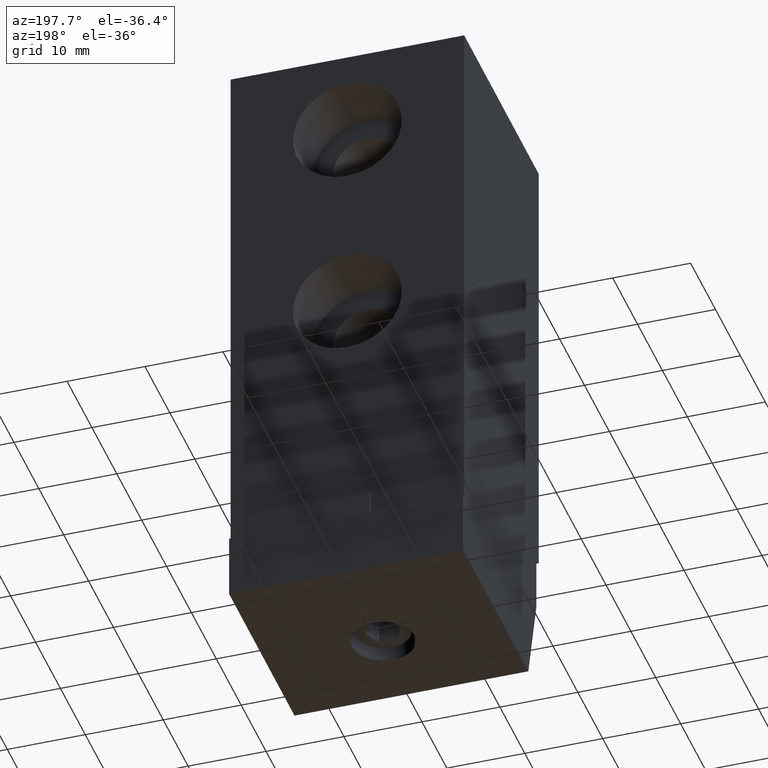
[diagram: clean part render]
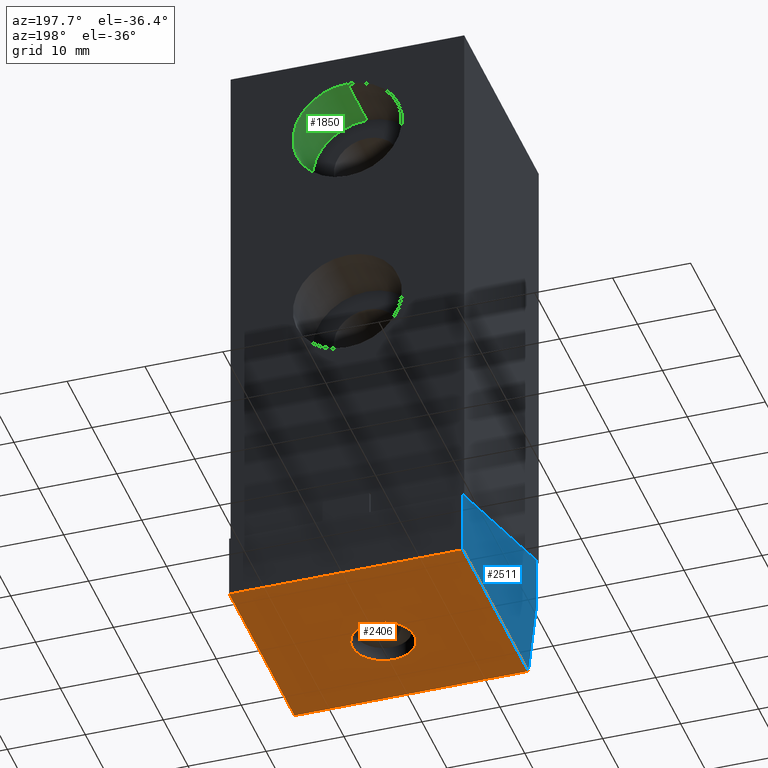
[diagram: same view with three faces highlighted in distinct colors, each labeled with its STEP entity id]
A machine part, auxiliary view with three faces highlighted in distinct colors.
Their STEP definitions:

[orange] entity #2406 — the highlighted planar face has unit normal (0, 0, -1).
#1001=CARTESIAN_POINT('',(0.E0,6.108661417323E-1,-3.09E0));
#1002=DIRECTION('',(0.E0,0.E0,1.E0));
#1003=DIRECTION('',(9.580766820097E-1,-2.865119044459E-1,0.E0));
#1004=AXIS2_PLACEMENT_3D('',#1001,#1002,#1003);
#1017=CARTESIAN_POINT('',(0.E0,6.108661417323E-1,-3.09E0));
#1018=DIRECTION('',(0.E0,0.E0,1.E0));
#1019=DIRECTION('',(-9.580766820097E-1,-2.865119044459E-1,0.E0));
#1020=AXIS2_PLACEMENT_3D('',#1017,#1018,#1019);
#1076=DIRECTION('',(1.E0,0.E0,0.E0));
#1077=VECTOR('',#1076,1.181102362205E0);
#1078=CARTESIAN_POINT('',(-5.905511811024E-1,1.665901696525E-1,-3.09E0));
#1079=LINE('',#1078,#1077);
#1083=DIRECTION('',(0.E0,1.E0,0.E0));
#1084=VECTOR('',#1083,1.034827153183E0);
#1085=CARTESIAN_POINT('',(5.905511811024E-1,1.665901696525E-1,-3.09E0));
#1086=LINE('',#1085,#1084);
#1090=DIRECTION('',(-1.E0,0.E0,0.E0));
#1091=VECTOR('',#1090,1.181102362205E0);
#1092=CARTESIAN_POINT('',(5.905511811024E-1,1.201417322835E0,-3.09E0));
#1093=LINE('',#1092,#1091);
#1097=DIRECTION('',(0.E0,-1.E0,0.E0));
#1098=VECTOR('',#1097,1.034827153182E0);
#1099=CARTESIAN_POINT('',(-5.905511811024E-1,1.201417322835E0,-3.09E0));
#1100=LINE('',#1099,#1098);
#1428=CARTESIAN_POINT('',(-5.905511811024E-1,1.665901696525E-1,-3.09E0));
#1429=CARTESIAN_POINT('',(5.905511811024E-1,1.665901696525E-1,-3.09E0));
#1430=VERTEX_POINT('',#1428);
#1431=VERTEX_POINT('',#1429);
#1432=CARTESIAN_POINT('',(5.905511811024E-1,1.201417322835E0,-3.09E0));
#1433=VERTEX_POINT('',#1432);
#1434=CARTESIAN_POINT('',(-5.905511811024E-1,1.201417322835E0,-3.09E0));
#1435=VERTEX_POINT('',#1434);
#1436=CARTESIAN_POINT('',(-1.508782176393E-1,5.657461567802E-1,-3.09E0));
#1437=CARTESIAN_POINT('',(1.508782176393E-1,5.657461567802E-1,-3.09E0));
#1438=VERTEX_POINT('',#1436);
#1439=VERTEX_POINT('',#1437);
#2387=CARTESIAN_POINT('',(-5.905511811024E-1,4.E-2,-3.09E0));
#2388=DIRECTION('',(0.E0,0.E0,-1.E0));
#2389=DIRECTION('',(-1.E0,0.E0,0.E0));
#2390=AXIS2_PLACEMENT_3D('',#2387,#2388,#2389);
#2391=PLANE('',#2390);
#2393=ORIENTED_EDGE('',*,*,#2392,.T.);
#2395=ORIENTED_EDGE('',*,*,#2394,.T.);
#2397=ORIENTED_EDGE('',*,*,#2396,.T.);
#2399=ORIENTED_EDGE('',*,*,#2398,.T.);
#2400=EDGE_LOOP('',(#2393,#2395,#2397,#2399));
#2401=FACE_OUTER_BOUND('',#2400,.F.);
#2402=ORIENTED_EDGE('',*,*,#2375,.F.);
#2403=ORIENTED_EDGE('',*,*,#2358,.F.);
#2404=EDGE_LOOP('',(#2402,#2403));
#2405=FACE_BOUND('',#2404,.F.);
#2406=ADVANCED_FACE('',(#2401,#2405),#2391,.T.);
#1005=CIRCLE('',#1004,1.574803149606E-1);
#1021=CIRCLE('',#1020,1.574803149606E-1);
#2358=EDGE_CURVE('',#1439,#1438,#1005,.T.);
#2375=EDGE_CURVE('',#1438,#1439,#1021,.T.);
#2392=EDGE_CURVE('',#1430,#1431,#1079,.T.);
#2394=EDGE_CURVE('',#1431,#1433,#1086,.T.);
#2396=EDGE_CURVE('',#1433,#1435,#1093,.T.);
#2398=EDGE_CURVE('',#1435,#1430,#1100,.T.);

[blue] entity #2511 — the highlighted planar face has unit normal (1, 0, 0).
#1097=DIRECTION('',(0.E0,-1.E0,0.E0));
#1098=VECTOR('',#1097,1.034827153182E0);
#1099=CARTESIAN_POINT('',(-5.905511811024E-1,1.201417322835E0,-3.09E0));
#1100=LINE('',#1099,#1098);
#1188=DIRECTION('',(0.E0,2.487336307832E-14,-1.E0));
#1189=VECTOR('',#1188,3.302991379315E-1);
#1190=CARTESIAN_POINT('',(-5.905511811024E-1,1.201417322835E0,
-2.759700862069E0));
#1191=LINE('',#1190,#1189);
#1223=DIRECTION('',(0.E0,2.588190451025E-1,-9.659258262891E-1));
#1224=VECTOR('',#1223,4.891068568867E-1);
#1225=CARTESIAN_POINT('',(-5.905511811024E-1,4.000000000001E-2,
-2.617559055118E0));
#1226=LINE('',#1225,#1224);
#1230=DIRECTION('',(0.E0,-9.396926207859E-1,3.420201433257E-1));
#1231=VECTOR('',#1230,1.235954499529E0);
#1232=CARTESIAN_POINT('',(-5.905511811024E-1,1.201417322835E0,
-2.759700862069E0));
#1233=LINE('',#1232,#1231);
#1237=DIRECTION('',(0.E0,-2.690686885806E-14,-1.E0));
#1238=VECTOR('',#1237,2.805795281226E-1);
#1239=CARTESIAN_POINT('',(-5.905511811024E-1,4.000000000001E-2,
-2.336979526995E0));
#1240=LINE('',#1239,#1238);
#1428=CARTESIAN_POINT('',(-5.905511811024E-1,1.665901696525E-1,-3.09E0));
#1430=VERTEX_POINT('',#1428);
#1434=CARTESIAN_POINT('',(-5.905511811024E-1,1.201417322835E0,-3.09E0));
#1435=VERTEX_POINT('',#1434);
#1529=CARTESIAN_POINT('',(-5.905511811024E-1,1.201417322835E0,
-2.759700862069E0));
#1530=VERTEX_POINT('',#1529);
#1531=CARTESIAN_POINT('',(-5.905511811024E-1,4.000000000001E-2,
-2.336979526995E0));
#1532=VERTEX_POINT('',#1531);
#1537=CARTESIAN_POINT('',(-5.905511811024E-1,4.000000000001E-2,
-2.617559055118E0));
#1538=VERTEX_POINT('',#1537);
#2498=CARTESIAN_POINT('',(-5.905511811024E-1,4.E-2,-3.09E0));
#2499=DIRECTION('',(1.E0,0.E0,0.E0));
#2500=DIRECTION('',(0.E0,0.E0,-1.E0));
#2501=AXIS2_PLACEMENT_3D('',#2498,#2499,#2500);
#2502=PLANE('',#2501);
#2503=ORIENTED_EDGE('',*,*,#2415,.T.);
#2504=ORIENTED_EDGE('',*,*,#2398,.F.);
#2505=ORIENTED_EDGE('',*,*,#2484,.F.);
#2507=ORIENTED_EDGE('',*,*,#2506,.T.);
#2508=ORIENTED_EDGE('',*,*,#1624,.T.);
#2509=EDGE_LOOP('',(#2503,#2504,#2505,#2507,#2508));
#2510=FACE_OUTER_BOUND('',#2509,.F.);
#2511=ADVANCED_FACE('',(#2510),#2502,.F.);
#1624=EDGE_CURVE('',#1532,#1538,#1240,.T.);
#2398=EDGE_CURVE('',#1435,#1430,#1100,.T.);
#2415=EDGE_CURVE('',#1538,#1430,#1226,.T.);
#2484=EDGE_CURVE('',#1530,#1435,#1191,.T.);
#2506=EDGE_CURVE('',#1530,#1532,#1233,.T.);

[green] entity #1850 — the highlighted cylindrical surface (partial cylindrical patch) has radius 6.9977 mm, axis along (0, 1, 0).
#431=CARTESIAN_POINT('',(0.E0,1.18E0,-4.33E-1));
#432=DIRECTION('',(0.E0,1.E0,0.E0));
#433=DIRECTION('',(0.E0,0.E0,1.E0));
#434=AXIS2_PLACEMENT_3D('',#431,#432,#433);
#514=DIRECTION('',(0.E0,-1.E0,0.E0));
#515=VECTOR('',#514,3.1E-1);
#516=CARTESIAN_POINT('',(0.E0,1.18E0,-1.575E-1));
#517=LINE('',#516,#515);
#521=DIRECTION('',(0.E0,-1.E0,0.E0));
#522=VECTOR('',#521,3.1E-1);
#523=CARTESIAN_POINT('',(0.E0,1.18E0,-7.085E-1));
#524=LINE('',#523,#522);
#528=CARTESIAN_POINT('',(0.E0,8.7E-1,-4.33E-1));
#529=DIRECTION('',(0.E0,1.E0,0.E0));
#530=DIRECTION('',(0.E0,0.E0,1.E0));
#531=AXIS2_PLACEMENT_3D('',#528,#529,#530);
#1404=CARTESIAN_POINT('',(0.E0,8.7E-1,-1.575E-1));
#1405=CARTESIAN_POINT('',(0.E0,8.7E-1,-7.085E-1));
#1406=VERTEX_POINT('',#1404);
#1407=VERTEX_POINT('',#1405);
#1412=CARTESIAN_POINT('',(0.E0,1.18E0,-1.575E-1));
#1413=CARTESIAN_POINT('',(0.E0,1.18E0,-7.085E-1));
#1414=VERTEX_POINT('',#1412);
#1415=VERTEX_POINT('',#1413);
#1836=CARTESIAN_POINT('',(0.E0,1.18E0,-4.33E-1));
#1837=DIRECTION('',(0.E0,1.E0,0.E0));
#1838=DIRECTION('',(0.E0,0.E0,1.E0));
#1839=AXIS2_PLACEMENT_3D('',#1836,#1837,#1838);
#1840=CYLINDRICAL_SURFACE('',#1839,2.755E-1);
#1841=ORIENTED_EDGE('',*,*,#1823,.F.);
#1843=ORIENTED_EDGE('',*,*,#1842,.T.);
#1845=ORIENTED_EDGE('',*,*,#1844,.T.);
#1847=ORIENTED_EDGE('',*,*,#1846,.F.);
#1848=EDGE_LOOP('',(#1841,#1843,#1845,#1847));
#1849=FACE_OUTER_BOUND('',#1848,.F.);
#1850=ADVANCED_FACE('',(#1849),#1840,.F.);
#435=CIRCLE('',#434,2.755E-1);
#532=CIRCLE('',#531,2.755E-1);
#1823=EDGE_CURVE('',#1414,#1415,#435,.T.);
#1842=EDGE_CURVE('',#1414,#1406,#517,.T.);
#1844=EDGE_CURVE('',#1406,#1407,#532,.T.);
#1846=EDGE_CURVE('',#1415,#1407,#524,.T.);